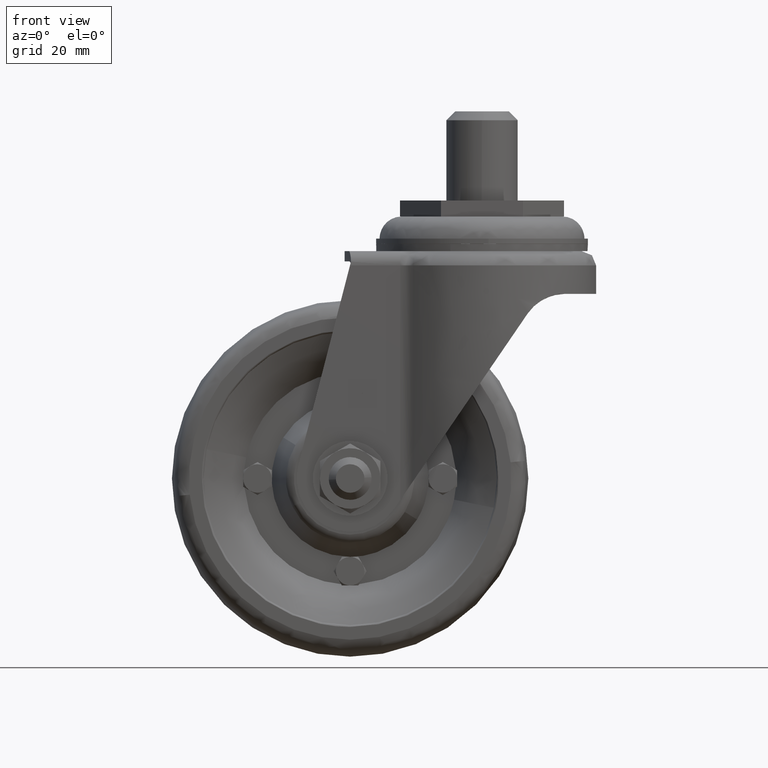
[diagram: clean part render]
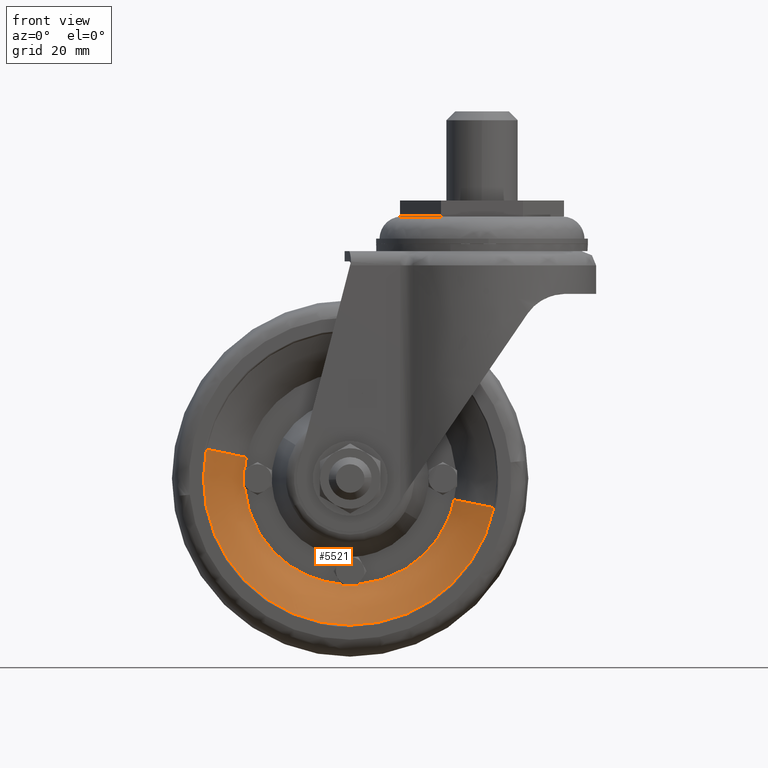
[diagram: same view with one face highlighted and labeled with its STEP entity id]
A machine part, front view. The second image highlights one B-rep face of the part: STEP entity #5521.
In plain terms, the highlighted face is a freeform B-spline surface patch.
Its self-contained STEP definition (entity closure, byte-faithful):
#4900=CARTESIAN_POINT('',(-78.149999999999991,-18.500000006029790,-73.500000000000000));
#4901=VERTEX_POINT('',#4900);
#4915=CARTESIAN_POINT('',(-77.321035406583121,-18.500000003136559,-65.281934301595868));
#4916=VERTEX_POINT('',#4915);
#4917=CARTESIAN_POINT('',(-77.321035406583121,-18.500000003136559,-65.281934301595868));
#4918=CARTESIAN_POINT('',(-78.150000000489428,-18.500000004610474,-69.349157902490759));
#4919=CARTESIAN_POINT('',(-78.149999999999991,-18.500000006029790,-73.500000000000000));
#4927=(BOUNDED_CURVE()B_SPLINE_CURVE(2,(#4917,#4918,#4919),.UNSPECIFIED.,.F.,.U.)B_SPLINE_CURVE_WITH_KNOTS((3,3),(0.715767038508845,0.750000000000000),.UNSPECIFIED.)CURVE()GEOMETRIC_REPRESENTATION_ITEM()RATIONAL_B_SPLINE_CURVE((0.930770871027061,0.959893590877354,1.0))REPRESENTATION_ITEM(''));
#4928=EDGE_CURVE('',#4916,#4901,#4927,.T.);
#4975=CARTESIAN_POINT('',(-37.0,-18.499999999999989,-114.650000000000010));
#4976=VERTEX_POINT('',#4975);
#4977=CARTESIAN_POINT('',(3.321035406583115,-18.500000003136559,-81.718065698404132));
#4978=VERTEX_POINT('',#4977);
#4979=CARTESIAN_POINT('',(-37.0,-18.499999999999989,-114.650000000000010));
#4980=CARTESIAN_POINT('',(-3.391014444280354,-18.500000001347200,-114.650000000099740));
#4981=CARTESIAN_POINT('',(3.321035406583115,-18.500000003136559,-81.718065698404132));
#4989=(BOUNDED_CURVE()B_SPLINE_CURVE(2,(#4979,#4980,#4981),.UNSPECIFIED.,.F.,.U.)B_SPLINE_CURVE_WITH_KNOTS((3,3),(0.0,0.215767038508845),.UNSPECIFIED.)CURVE()GEOMETRIC_REPRESENTATION_ITEM()RATIONAL_B_SPLINE_CURVE((1.0,0.747213190309193,0.930770871027061))REPRESENTATION_ITEM(''));
#4990=EDGE_CURVE('',#4976,#4978,#4989,.T.);
#4992=CARTESIAN_POINT('',(-78.149999999999991,-18.500000006029790,-73.500000000000000));
#4993=CARTESIAN_POINT('',(-78.150000000000006,-18.500000003014893,-114.649999999999990));
#4994=CARTESIAN_POINT('',(-37.0,-18.499999999999989,-114.650000000000010));
#5002=(BOUNDED_CURVE()B_SPLINE_CURVE(2,(#4992,#4993,#4994),.UNSPECIFIED.,.F.,.U.)B_SPLINE_CURVE_WITH_KNOTS((3,3),(0.750000000000000,1.0),.UNSPECIFIED.)CURVE()GEOMETRIC_REPRESENTATION_ITEM()RATIONAL_B_SPLINE_CURVE((1.0,0.707106781186548,1.0))REPRESENTATION_ITEM(''));
#5003=EDGE_CURVE('',#4901,#4976,#5002,.T.);
#5032=CARTESIAN_POINT('',(-34.691434000000100,-9.476747303996060,-103.499932000000000));
#5033=VERTEX_POINT('',#5032);
#5067=CARTESIAN_POINT('',(-39.308543999999998,-9.476743606429920,-103.499931000000000));
#5068=VERTEX_POINT('',#5067);
#5074=CARTESIAN_POINT('',(-37.0,-9.353905504797249,-103.499931493000800));
#5075=VERTEX_POINT('',#5074);
#5076=CARTESIAN_POINT('',(-39.308543999999998,-9.476743606429920,-103.499931000000000));
#5077=CARTESIAN_POINT('',(-38.915113804274100,-9.435174274428135,-103.499931084015600));
#5078=CARTESIAN_POINT('',(-38.518460109871803,-9.403597364738417,-103.499931168721300));
#5079=CARTESIAN_POINT('',(-37.918220053960361,-9.372535803430944,-103.499931296905600));
#5080=CARTESIAN_POINT('',(-37.616786040289597,-9.361078205829582,-103.499931361279100));
#5081=CARTESIAN_POINT('',(-37.262732584575311,-9.355090059096474,-103.499931436891000));
#5082=CARTESIAN_POINT('',(-37.097789645045523,-9.354048806037790,-103.499931472116500));
#5083=CARTESIAN_POINT('',(-37.027906492862201,-9.353917025424998,-103.499931487041000));
#5084=CARTESIAN_POINT('',(-37.008839288024959,-9.353906390516380,-103.499931491113100));
#5085=CARTESIAN_POINT('',(-37.001641762709703,-9.353905563011480,-103.499931492650210));
#5086=CARTESIAN_POINT('',(-37.000815076320158,-9.353905511607051,-103.499931492826800));
#5087=CARTESIAN_POINT('',(-37.0,-9.353905504797249,-103.499931493000800));
#5088=B_SPLINE_CURVE_WITH_KNOTS('',3,(#5076,#5077,#5078,#5079,#5080,#5081,#5082,#5083,#5084,#5085,#5086,#5087),.UNSPECIFIED.,.F.,.U.,(4,2,1,1,1,1,2,4),(0.0,0.250000000000113,0.375000000000168,0.437500000000195,0.468750000000211,0.476562500000213,0.480468750000213,0.480985484627800),.UNSPECIFIED.);
#5089=EDGE_CURVE('',#5068,#5075,#5088,.T.);
#5091=CARTESIAN_POINT('',(-37.0,-9.353905504797249,-103.499931493000800));
#5092=CARTESIAN_POINT('',(-36.994653515712073,-9.353905457316795,-103.499931501155600));
#5093=CARTESIAN_POINT('',(-36.989806576461469,-9.353907331410696,-103.499931502205400));
#5094=CARTESIAN_POINT('',(-36.961324054153643,-9.353927535404241,-103.499931508374300));
#5095=CARTESIAN_POINT('',(-36.189197127684452,-9.355727800172019,-103.499931675605890));
#5096=CARTESIAN_POINT('',(-35.425264152569447,-9.399210604644468,-103.499931841062900));
#5097=CARTESIAN_POINT('',(-34.691434000000122,-9.476747303996117,-103.499932000000000));
#5098=B_SPLINE_CURVE_WITH_KNOTS('',3,(#5091,#5092,#5093,#5094,#5095,#5096,#5097),.UNSPECIFIED.,.F.,.U.,(4,2,1,4),(0.480985484627801,0.484375000000214,0.500000000000209,1.0),.UNSPECIFIED.);
#5099=EDGE_CURVE('',#5075,#5033,#5098,.T.);
#5276=CARTESIAN_POINT('',(-66.150687808490005,-9.000000000149779,-67.558628079463773));
#5277=VERTEX_POINT('',#5276);
#5278=CARTESIAN_POINT('',(-77.321035406583121,-18.500000003136563,-65.281934301595882));
#5279=CARTESIAN_POINT('',(-70.453081100936373,-15.320984000050350,-66.681732176932357));
#5280=CARTESIAN_POINT('',(-66.150687808490005,-9.000000000149779,-67.558628079463773));
#5288=(BOUNDED_CURVE()B_SPLINE_CURVE(2,(#5278,#5279,#5280),.UNSPECIFIED.,.F.,.U.)B_SPLINE_CURVE_WITH_KNOTS((3,3),(-1.456683927546540,-0.530813769146953),.UNSPECIFIED.)CURVE()GEOMETRIC_REPRESENTATION_ITEM()RATIONAL_B_SPLINE_CURVE((0.937729680397653,0.904461501534514,0.938640439102993))REPRESENTATION_ITEM(''));
#5289=EDGE_CURVE('',#4916,#5277,#5288,.T.);
#5355=CARTESIAN_POINT('',(-7.849312191509986,-9.000000000149782,-79.441371920536213));
#5356=VERTEX_POINT('',#5355);
#5370=CARTESIAN_POINT('',(3.321035406583115,-18.500000003136559,-81.718065698404132));
#5371=CARTESIAN_POINT('',(-3.546918899063632,-15.320984000050363,-80.318267823067615));
#5372=CARTESIAN_POINT('',(-7.849312191509986,-9.000000000149782,-79.441371920536213));
#5380=(BOUNDED_CURVE()B_SPLINE_CURVE(2,(#5370,#5371,#5372),.UNSPECIFIED.,.F.,.U.)B_SPLINE_CURVE_WITH_KNOTS((3,3),(-1.456683927546541,-0.530813769146953),.UNSPECIFIED.)CURVE()GEOMETRIC_REPRESENTATION_ITEM()RATIONAL_B_SPLINE_CURVE((0.937729680397653,0.904461501534514,0.938640439102993))REPRESENTATION_ITEM(''));
#5381=EDGE_CURVE('',#4978,#5356,#5380,.T.);
#5386=CARTESIAN_POINT('',(-77.751949537903215,-18.796786168452098,-64.000688287172196));
#5387=CARTESIAN_POINT('',(-77.868037690897395,-18.796786168452101,-64.570262040773912));
#5388=CARTESIAN_POINT('',(-86.338977135224738,-18.796786168452101,-106.131994667182890));
#5389=CARTESIAN_POINT('',(-45.353491234020915,-18.796786168452098,-114.485485901203820));
#5390=CARTESIAN_POINT('',(-4.368005332817124,-18.796786168452101,-122.838977135224720));
#5391=CARTESIAN_POINT('',(4.102934111476432,-18.796786168452098,-81.277244508981411));
#5392=CARTESIAN_POINT('',(4.219022264437635,-18.796786168452094,-80.707670755541557));
#5393=CARTESIAN_POINT('',(-70.123441351541175,-15.492830967076044,-65.778899587191418));
#5394=CARTESIAN_POINT('',(-70.217798533735248,-15.492830967076051,-66.241852722850737));
#5395=CARTESIAN_POINT('',(-77.103031487208057,-15.492830967076049,-100.023490870956010));
#5396=CARTESIAN_POINT('',(-43.789770308126023,-15.492830967076047,-106.813261179082030));
#5397=CARTESIAN_POINT('',(-10.476509129043984,-15.492830967076049,-113.603031487208070));
#5398=CARTESIAN_POINT('',(-3.591276175598603,-15.492830967076054,-79.821393339237446));
#5399=CARTESIAN_POINT('',(-3.496918993431339,-15.492830967076049,-79.358440203709662));
#5400=CARTESIAN_POINT('',(-65.581441659572349,-8.387152784593752,-66.837643312652929));
#5401=CARTESIAN_POINT('',(-65.662860261867309,-8.387152784593752,-67.237114729210532));
#5402=CARTESIAN_POINT('',(-71.603966497892245,-8.387152784593754,-96.386498986952546));
#5403=CARTESIAN_POINT('',(-42.858733755469849,-8.387152784593752,-102.245232742422400));
#5404=CARTESIAN_POINT('',(-14.113501013047452,-8.387152784593754,-108.103966497892290));
#5405=CARTESIAN_POINT('',(-8.172394777046165,-8.387152784593752,-78.954582240266447));
#5406=CARTESIAN_POINT('',(-8.090976174774337,-8.387152784593752,-78.555110823822332));
#5414=(BOUNDED_SURFACE()B_SPLINE_SURFACE(2,2,((#5386,#5393,#5400),(#5387,#5394,#5401),(#5388,#5395,#5402),(#5389,#5396,#5403),(#5390,#5397,#5404),(#5391,#5398,#5405),(#5392,#5399,#5406)),.UNSPECIFIED.,.F.,.F.,.U.)B_SPLINE_SURFACE_WITH_KNOTS((3,1,2,1,3),(3,3),(0.0,1.386061669739519,70.689145138752536,139.992228607765610,141.378290277104300),(0.0,16.624486751882920),.UNSPECIFIED.)GEOMETRIC_REPRESENTATION_ITEM()RATIONAL_B_SPLINE_SURFACE(((0.952248542994562,0.911479223061471,0.953262028198237),(0.946734995403808,0.906201731054470,0.947742612497793),(0.665544068346831,0.637049638765795,0.666252411846672),(0.941221447813055,0.900924239047468,0.942223196797349),(0.665544068346831,0.637049638765795,0.666252411846672),(0.946734995402214,0.906201731052944,0.947742612496197),(0.952248542991373,0.911479223058419,0.953262028195045)))REPRESENTATION_ITEM('')SURFACE());
#5415=ORIENTED_EDGE('',*,*,#4990,.T.);
#5416=ORIENTED_EDGE('',*,*,#5381,.T.);
#5417=CARTESIAN_POINT('',(-34.485571768138151,-9.0,-103.143551586589600));
#5418=VERTEX_POINT('',#5417);
#5419=CARTESIAN_POINT('',(-34.485571768138151,-9.0,-103.143551586589600));
#5420=CARTESIAN_POINT('',(-12.296586742648124,-9.000000000074891,-101.261435328656060));
#5421=CARTESIAN_POINT('',(-7.849312191509986,-9.000000000149782,-79.441371920536213));
#5429=(BOUNDED_CURVE()B_SPLINE_CURVE(2,(#5419,#5420,#5421),.UNSPECIFIED.,.F.,.U.)B_SPLINE_CURVE_WITH_KNOTS((3,3),(0.0,0.911488640893218),.UNSPECIFIED.)CURVE()GEOMETRIC_REPRESENTATION_ITEM()RATIONAL_B_SPLINE_CURVE((1.0,0.785197625602861,0.961975099805491))REPRESENTATION_ITEM(''));
#5430=EDGE_CURVE('',#5418,#5356,#5429,.T.);
#5431=ORIENTED_EDGE('',*,*,#5430,.F.);
#5432=CARTESIAN_POINT('',(-34.691434000000093,-9.476747303996092,-103.499932000000000));
#5433=CARTESIAN_POINT('',(-34.622048711697190,-9.319151059390052,-103.379814980446000));
#5434=CARTESIAN_POINT('',(-34.553425263486680,-9.160239958654588,-103.261016827809200));
#5435=CARTESIAN_POINT('',(-34.485571768138122,-8.999999999999970,-103.143551586589690));
#5436=QUASI_UNIFORM_CURVE('',3,(#5432,#5433,#5434,#5435),.UNSPECIFIED.,.F.,.U.);
#5437=EDGE_CURVE('',#5033,#5418,#5436,.T.);
#5438=ORIENTED_EDGE('',*,*,#5437,.F.);
#5439=ORIENTED_EDGE('',*,*,#5099,.F.);
#5440=ORIENTED_EDGE('',*,*,#5089,.F.);
#5441=CARTESIAN_POINT('',(-39.514298507657003,-9.0,-103.143562589783000));
#5442=VERTEX_POINT('',#5441);
#5443=CARTESIAN_POINT('',(-39.514298507656981,-8.999999999999988,-103.143562589783000));
#5444=CARTESIAN_POINT('',(-39.446480706972302,-9.160238647562750,-103.261023548911600));
#5445=CARTESIAN_POINT('',(-39.377893169033882,-9.319148518558910,-103.379817698960300));
#5446=CARTESIAN_POINT('',(-39.308544000000012,-9.476743606429938,-103.499931000000000));
#5447=QUASI_UNIFORM_CURVE('',3,(#5443,#5444,#5445,#5446),.UNSPECIFIED.,.F.,.U.);
#5448=EDGE_CURVE('',#5442,#5068,#5447,.T.);
#5449=ORIENTED_EDGE('',*,*,#5448,.F.);
#5450=CARTESIAN_POINT('',(-66.643551586589496,-9.0,-76.014428231861999));
#5451=VERTEX_POINT('',#5450);
#5452=CARTESIAN_POINT('',(-66.643551586589496,-9.0,-76.014428231861999));
#5453=CARTESIAN_POINT('',(-64.522319565928811,-9.0,-101.022440007575800));
#5454=CARTESIAN_POINT('',(-39.514298507657017,-9.0,-103.143562589783200));
#5462=(BOUNDED_CURVE()B_SPLINE_CURVE(2,(#5452,#5453,#5454),.UNSPECIFIED.,.F.,.U.)CURVE()GEOMETRIC_REPRESENTATION_ITEM()QUASI_UNIFORM_CURVE()RATIONAL_B_SPLINE_CURVE((1.0,0.764338945368931,1.0))REPRESENTATION_ITEM(''));
#5463=EDGE_CURVE('',#5451,#5442,#5462,.T.);
#5464=ORIENTED_EDGE('',*,*,#5463,.F.);
#5465=CARTESIAN_POINT('',(-66.999932000000001,-9.476747303996390,-75.808565999999900));
#5466=VERTEX_POINT('',#5465);
#5467=CARTESIAN_POINT('',(-66.999932000000129,-9.476747303996271,-75.808565999999828));
#5468=CARTESIAN_POINT('',(-66.879814980446127,-9.319151059390148,-75.877951288302768));
#5469=CARTESIAN_POINT('',(-66.761016827809186,-9.160239958654596,-75.946574736513313));
#5470=CARTESIAN_POINT('',(-66.643551586589609,-8.999999999999890,-76.014428231861913));
#5471=QUASI_UNIFORM_CURVE('',3,(#5467,#5468,#5469,#5470),.UNSPECIFIED.,.F.,.U.);
#5472=EDGE_CURVE('',#5466,#5451,#5471,.T.);
#5473=ORIENTED_EDGE('',*,*,#5472,.F.);
#5474=CARTESIAN_POINT('',(-66.999931000000004,-9.476743606430139,-71.191456000000002));
#5475=VERTEX_POINT('',#5474);
#5476=CARTESIAN_POINT('',(-66.999931000000004,-9.476743606429988,-71.191455999999945));
#5477=CARTESIAN_POINT('',(-66.999931085211372,-9.435174273948800,-71.584886195676532));
#5478=CARTESIAN_POINT('',(-66.999931171120878,-9.403597363776413,-71.981539890029069));
#5479=CARTESIAN_POINT('',(-66.999931301124263,-9.372535801739614,-72.581779945865463));
#5480=CARTESIAN_POINT('',(-66.999931366410564,-9.361078203772252,-72.883213959498619));
#5481=CARTESIAN_POINT('',(-66.999931443093516,-9.355090056609765,-73.237267415168773));
#5482=CARTESIAN_POINT('',(-66.999931478817771,-9.354048803351141,-73.402210354678090));
#5483=CARTESIAN_POINT('',(-66.999931493953454,-9.353917022653667,-73.472093506852516));
#5484=CARTESIAN_POINT('',(-66.999931498083157,-9.353906387721937,-73.491160711687371));
#5485=CARTESIAN_POINT('',(-66.999931500836666,-9.353904926050527,-73.503873997229391));
#5486=CARTESIAN_POINT('',(-66.999931502037711,-9.353906782351041,-73.509419388267688));
#5487=CARTESIAN_POINT('',(-66.999931508374260,-9.353927535404234,-73.538675945846407));
#5488=CARTESIAN_POINT('',(-66.999931675605936,-9.355727800172009,-74.310802872315620));
#5489=CARTESIAN_POINT('',(-66.999931841062903,-9.399210604644463,-75.074735847430659));
#5490=CARTESIAN_POINT('',(-66.999932000000001,-9.476747303996115,-75.808565999999956));
#5491=B_SPLINE_CURVE_WITH_KNOTS('',3,(#5476,#5477,#5478,#5479,#5480,#5481,#5482,#5483,#5484,#5485,#5486,#5487,#5488,#5489,#5490),.UNSPECIFIED.,.F.,.U.,(4,2,1,1,1,1,2,2,1,4),(0.0,0.249999999999815,0.374999999999722,0.437499999999671,0.468749999999642,0.476562499999641,0.480468749999640,0.484374999999640,0.499999999999647,1.0),.UNSPECIFIED.);
#5492=EDGE_CURVE('',#5475,#5466,#5491,.T.);
#5493=ORIENTED_EDGE('',*,*,#5492,.F.);
#5494=CARTESIAN_POINT('',(-66.643562589782803,-9.0,-70.985701492342798));
#5495=VERTEX_POINT('',#5494);
#5496=CARTESIAN_POINT('',(-66.643562589782888,-8.999999999999867,-70.985701492342969));
#5497=CARTESIAN_POINT('',(-66.761023548911510,-9.160238647562712,-71.053519293027676));
#5498=CARTESIAN_POINT('',(-66.879817698960352,-9.319148518558963,-71.122106830966146));
#5499=CARTESIAN_POINT('',(-66.999931000000075,-9.476743606430071,-71.191456000000045));
#5500=QUASI_UNIFORM_CURVE('',3,(#5496,#5497,#5498,#5499),.UNSPECIFIED.,.F.,.U.);
#5501=EDGE_CURVE('',#5495,#5475,#5500,.T.);
#5502=ORIENTED_EDGE('',*,*,#5501,.F.);
#5503=CARTESIAN_POINT('',(-66.150687808489991,-9.000000000149779,-67.558628079463773));
#5504=CARTESIAN_POINT('',(-66.497005987628313,-9.000000000074889,-69.257800132491184));
#5505=CARTESIAN_POINT('',(-66.643562589782803,-9.0,-70.985701492342798));
#5513=(BOUNDED_CURVE()B_SPLINE_CURVE(2,(#5503,#5504,#5505),.UNSPECIFIED.,.F.,.U.)B_SPLINE_CURVE_WITH_KNOTS((3,3),(0.911488640893227,1.0),.UNSPECIFIED.)CURVE()GEOMETRIC_REPRESENTATION_ITEM()RATIONAL_B_SPLINE_CURVE((0.961975099805495,0.979141319766069,1.0))REPRESENTATION_ITEM(''));
#5514=EDGE_CURVE('',#5277,#5495,#5513,.T.);
#5515=ORIENTED_EDGE('',*,*,#5514,.F.);
#5516=ORIENTED_EDGE('',*,*,#5289,.F.);
#5517=ORIENTED_EDGE('',*,*,#4928,.T.);
#5518=ORIENTED_EDGE('',*,*,#5003,.T.);
#5519=EDGE_LOOP('',(#5415,#5416,#5431,#5438,#5439,#5440,#5449,#5464,#5473,#5493,#5502,#5515,#5516,#5517,#5518));
#5520=FACE_OUTER_BOUND('',#5519,.T.);
#5521=ADVANCED_FACE('',(#5520),#5414,.T.);